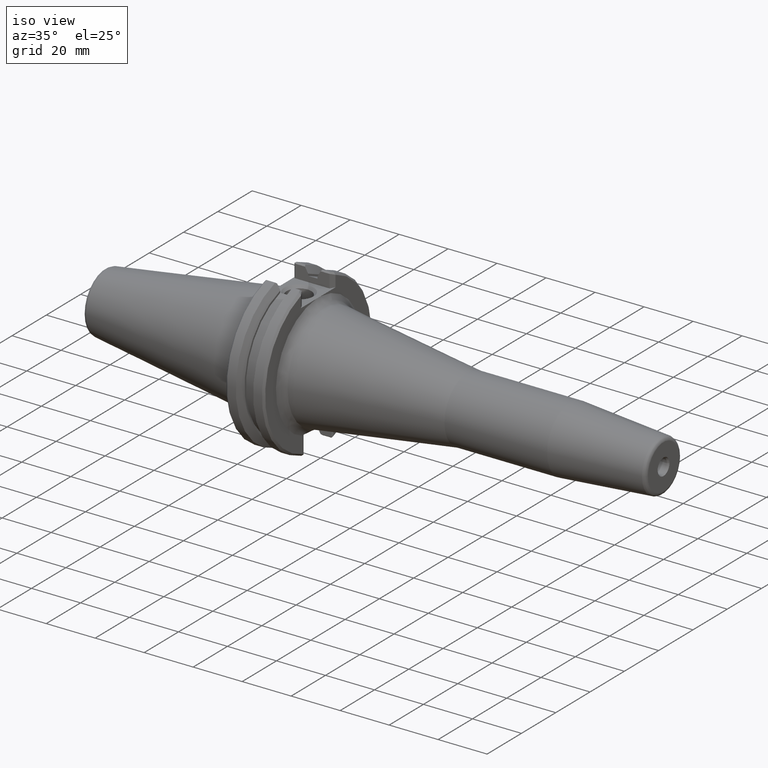
[diagram: clean part render]
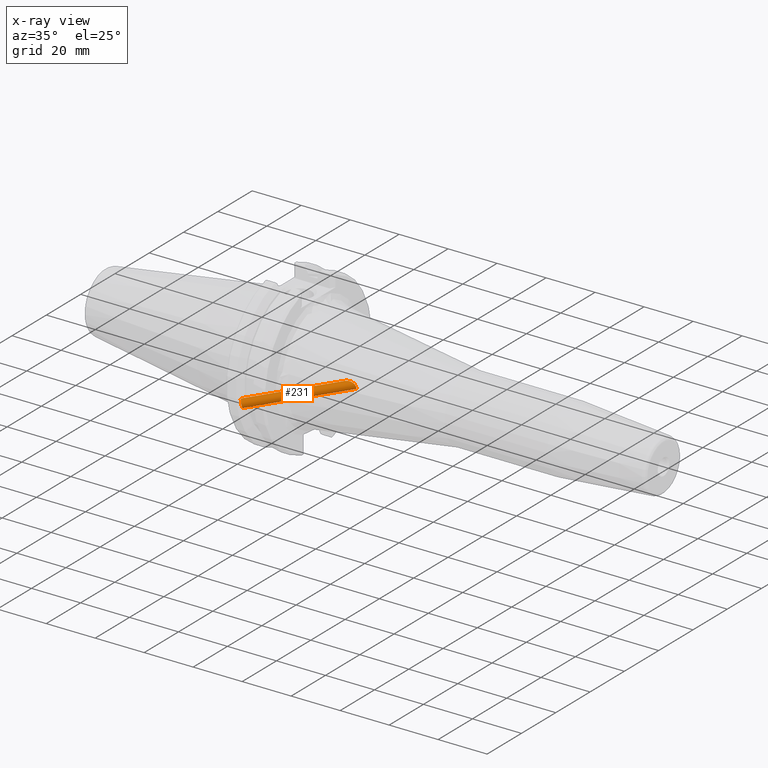
[diagram: x-ray — body ghosted, one internal face saturated and labeled with its STEP entity id]
A machine part, iso view, then the same camera in x-ray: the body is ghosted and one INTERNAL B-rep face — a face not visible from any outside direction — is saturated and labeled: STEP entity #231.
In plain terms, the highlighted cylindrical surface (bore or boss wall) has radius 1.65 mm, axis along (0.8192, 0.539, 0.1962).
Its self-contained STEP definition (entity closure, byte-faithful):
#149=CARTESIAN_POINT('',(5.731887362715521,-25.582310559250171,-9.311199567321024));
#150=VERTEX_POINT('',#149);
#151=CARTESIAN_POINT('',(4.785486242736299,-24.312221192572075,-8.848924842992187));
#152=DIRECTION('',(0.819152044288993,0.538985544695755,0.196174694969011));
#153=DIRECTION('',(0.573576436351045,-0.769751131320058,-0.280166499593236));
#154=AXIS2_PLACEMENT_3D('',#151,#152,#153);
#155=CIRCLE('',#154,1.649999999999998);
#156=EDGE_CURVE('',#150,#150,#155,.T.);
#161=CARTESIAN_POINT('',(21.809385652337436,-13.110838299004524,-4.771954887114974));
#162=DIRECTION('',(0.819152044288993,0.538985544695755,0.196174694969011));
#163=DIRECTION('',(0.573576436351045,-0.769751131320058,-0.280166499593236));
#164=AXIS2_PLACEMENT_3D('',#161,#162,#163);
#165=CYLINDRICAL_SURFACE('',#164,1.649999999999995);
#166=CARTESIAN_POINT('',(35.258386387634395,-3.697333486293531,-3.101612659751781));
#167=VERTEX_POINT('',#166);
#168=CARTESIAN_POINT('',(35.258386387634388,-3.697333486293532,-3.101612659751782));
#169=CARTESIAN_POINT('',(35.641163587562552,-3.697333486293532,-3.101612659751782));
#170=CARTESIAN_POINT('',(36.067857852994052,-3.730313325714318,-3.064722795173553));
#171=CARTESIAN_POINT('',(36.452508892279702,-3.811429538828061,-2.960283917219583));
#172=CARTESIAN_POINT('',(36.645272853414177,-3.852080105068756,-2.907945434400884));
#173=CARTESIAN_POINT('',(36.827560945444041,-3.904230300957148,-2.838776340796345));
#174=CARTESIAN_POINT('',(36.989620752750810,-3.965067284668036,-2.751093860277263));
#175=CARTESIAN_POINT('',(37.102678302940895,-4.007508902078376,-2.689924057555528));
#176=CARTESIAN_POINT('',(37.207918158681537,-4.054623544928345,-2.619228051342303));
#177=CARTESIAN_POINT('',(37.304596824292759,-4.107264242973970,-2.533901426335970));
#178=CARTESIAN_POINT('',(37.477579587802772,-4.201451862998089,-2.381230355616668));
#179=CARTESIAN_POINT('',(37.611032293730140,-4.309647142614230,-2.184877381602401));
#180=CARTESIAN_POINT('',(37.674559195561628,-4.406548459513624,-1.967893969185866));
#181=CARTESIAN_POINT('',(37.736709716188450,-4.501350301270318,-1.755611744486109));
#182=CARTESIAN_POINT('',(37.734851404578890,-4.583261616477135,-1.528960809673455));
#183=CARTESIAN_POINT('',(37.669067611629721,-4.645981962641012,-1.305805346448838));
#184=CARTESIAN_POINT('',(37.599446594174587,-4.712360839858404,-1.069633035551930));
#185=CARTESIAN_POINT('',(37.454826059972518,-4.755020189514711,-0.844082809540854));
#186=CARTESIAN_POINT('',(37.271282398382375,-4.779858030652734,-0.665757618660558));
#187=CARTESIAN_POINT('',(37.117285308410082,-4.800697514965687,-0.516138938143863));
#188=CARTESIAN_POINT('',(36.944843722902455,-4.810279056233339,-0.400728765784504));
#189=CARTESIAN_POINT('',(36.750969068544585,-4.816316495462042,-0.305567366615352));
#190=CARTESIAN_POINT('',(36.397141770750281,-4.827335010568952,-0.131894841788081));
#191=CARTESIAN_POINT('',(35.980810604757579,-4.825910577159295,-0.041309249640375));
#192=CARTESIAN_POINT('',(35.583511019688203,-4.825984404907511,-0.012268805544724));
#193=CARTESIAN_POINT('',(35.357312486265421,-4.826026437995387,0.004265079994662));
#194=CARTESIAN_POINT('',(35.144288616046275,-4.826023479447205,0.002973489397161));
#195=CARTESIAN_POINT('',(34.920431264233933,-4.825984143111224,-0.012371355585741));
#196=CARTESIAN_POINT('',(34.288317499394047,-4.825873067735631,-0.055701126328130));
#197=CARTESIAN_POINT('',(33.610390594217336,-4.828782975016435,-0.219372961117781));
#198=CARTESIAN_POINT('',(33.041219744243286,-4.800876164571917,-0.491796759287050));
#199=CARTESIAN_POINT('',(32.842792560266879,-4.791147152957000,-0.586770504202748));
#200=CARTESIAN_POINT('',(32.659913698894499,-4.778112808030106,-0.691797287885835));
#201=CARTESIAN_POINT('',(32.484699831238473,-4.754714883005133,-0.826415380622533));
#202=CARTESIAN_POINT('',(32.316121301222324,-4.732203035861382,-0.955935495044534));
#203=CARTESIAN_POINT('',(32.163574125358359,-4.699963927053917,-1.110161986499882));
#204=CARTESIAN_POINT('',(32.068468827152614,-4.652552215294910,-1.282198847275429));
#205=CARTESIAN_POINT('',(32.006983631983175,-4.621900733139694,-1.393419990163174));
#206=CARTESIAN_POINT('',(31.969302405307385,-4.584934049660549,-1.511955890926158));
#207=CARTESIAN_POINT('',(31.966517510775610,-4.540278194883353,-1.635894224290424));
#208=CARTESIAN_POINT('',(31.964175401173922,-4.502722407742470,-1.740126954570642));
#209=CARTESIAN_POINT('',(31.987148056140182,-4.462676687795547,-1.839806237497956));
#210=CARTESIAN_POINT('',(32.028786904775608,-4.422457998317782,-1.931875061466213));
#211=CARTESIAN_POINT('',(32.138193483114200,-4.316782905340277,-2.173787009854141));
#212=CARTESIAN_POINT('',(32.377902380819506,-4.208163616448820,-2.368459463467475));
#213=CARTESIAN_POINT('',(32.626314181969676,-4.121144572071913,-2.511263310782487));
#214=CARTESIAN_POINT('',(32.739289086691990,-4.081569285382675,-2.576208901006845));
#215=CARTESIAN_POINT('',(32.853779792830274,-4.046032880400690,-2.631291009659956));
#216=CARTESIAN_POINT('',(32.975930123896823,-4.011775088098079,-2.682524304179862));
#217=CARTESIAN_POINT('',(33.542224044426490,-3.852954564712298,-2.920043948719512));
#218=CARTESIAN_POINT('',(34.225694402652259,-3.739812166326403,-3.050679234458442));
#219=CARTESIAN_POINT('',(34.866831997454092,-3.707402791650834,-3.089569636771375));
#220=CARTESIAN_POINT('',(34.999653587590998,-3.700688687354576,-3.097626386396023));
#221=CARTESIAN_POINT('',(35.130647026706320,-3.697333486293532,-3.101612659751782));
#222=CARTESIAN_POINT('',(35.258386387634395,-3.697333486293532,-3.101612659751782));
#223=B_SPLINE_CURVE_WITH_KNOTS('',3,(#168,#169,#170,#171,#172,#173,#174,#175,#176,#177,#178,#179,#180,#181,#182,#183,#184,#185,#186,#187,#188,#189,#190,#191,#192,#193,#194,#195,#196,#197,#198,#199,#200,#201,#202,#203,#204,#205,#206,#207,#208,#209,#210,#211,#212,#213,#214,#215,#216,#217,#218,#219,#220,#221,#222),.UNSPECIFIED.,.T.,.U.,(4,3,3,3,3,3,3,3,3,3,3,3,3,3,3,3,3,3,4),(0.0,0.114833159978450,0.172380631650810,0.212527391510858,0.284360173052250,0.354636617238250,0.429012346091992,0.491415186423363,0.605302318510166,0.670142814754992,0.853235171845691,0.917065743679731,0.978479055958171,1.018182516887057,1.051573317149221,1.139308048641363,1.179208821814255,1.364190434839365,1.402512243117787),.UNSPECIFIED.);
#224=EDGE_CURVE('',#167,#167,#223,.T.);
#225=ORIENTED_EDGE('',*,*,#224,.F.);
#226=EDGE_LOOP('',(#225));
#227=FACE_OUTER_BOUND('',#226,.T.);
#228=ORIENTED_EDGE('',*,*,#156,.F.);
#229=EDGE_LOOP('',(#228));
#230=FACE_BOUND('',#229,.T.);
#231=ADVANCED_FACE('',(#227,#230),#165,.F.);